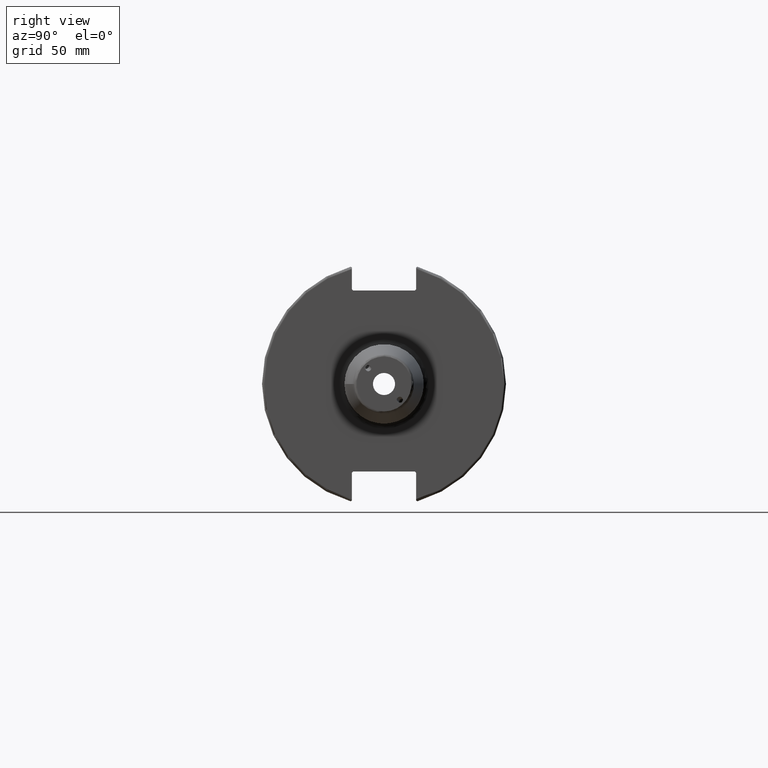
[diagram: clean part render]
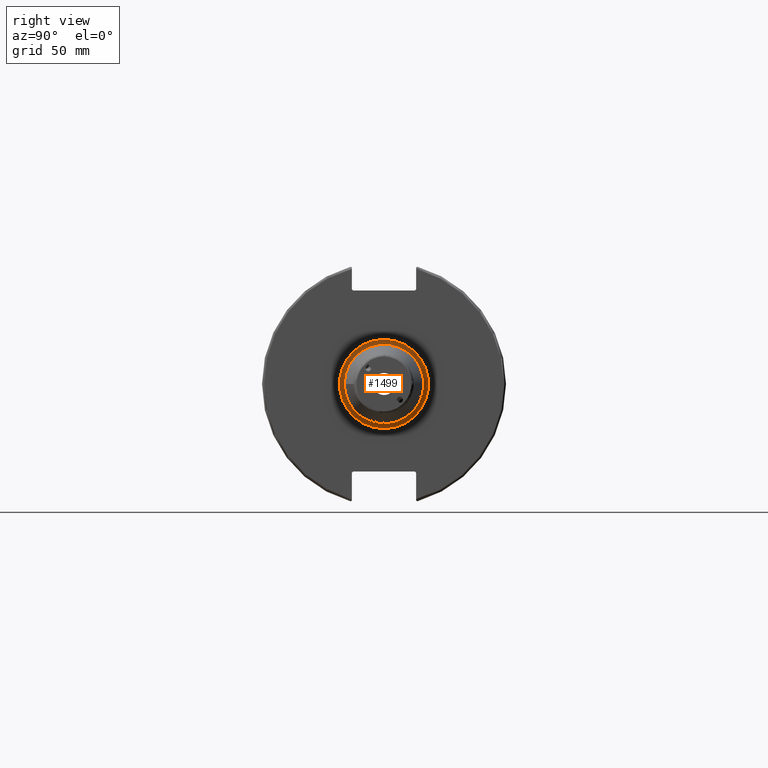
[diagram: same view with one face highlighted and labeled with its STEP entity id]
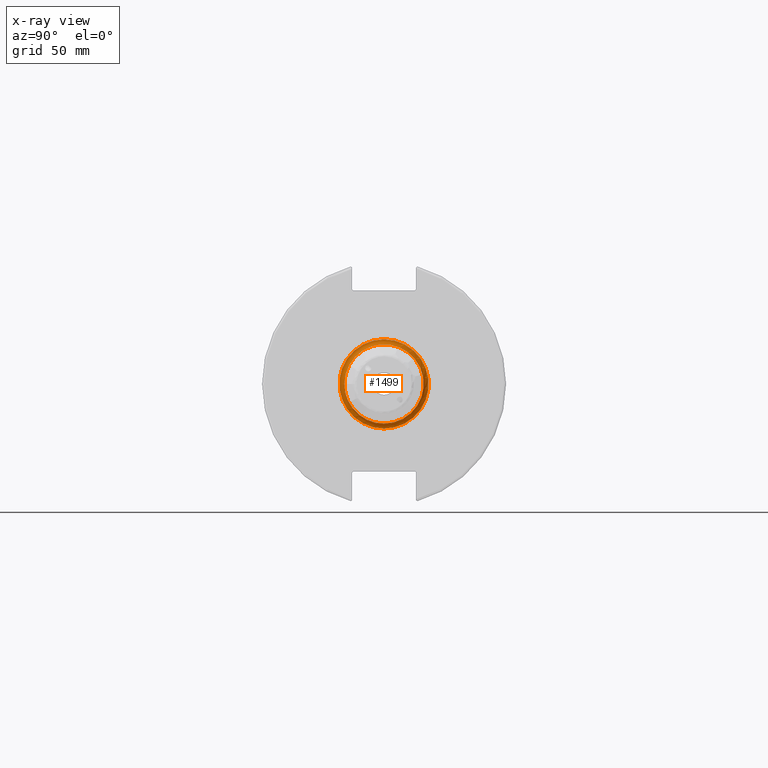
[diagram: x-ray of the same camera — body ghosted, the highlighted face saturated]
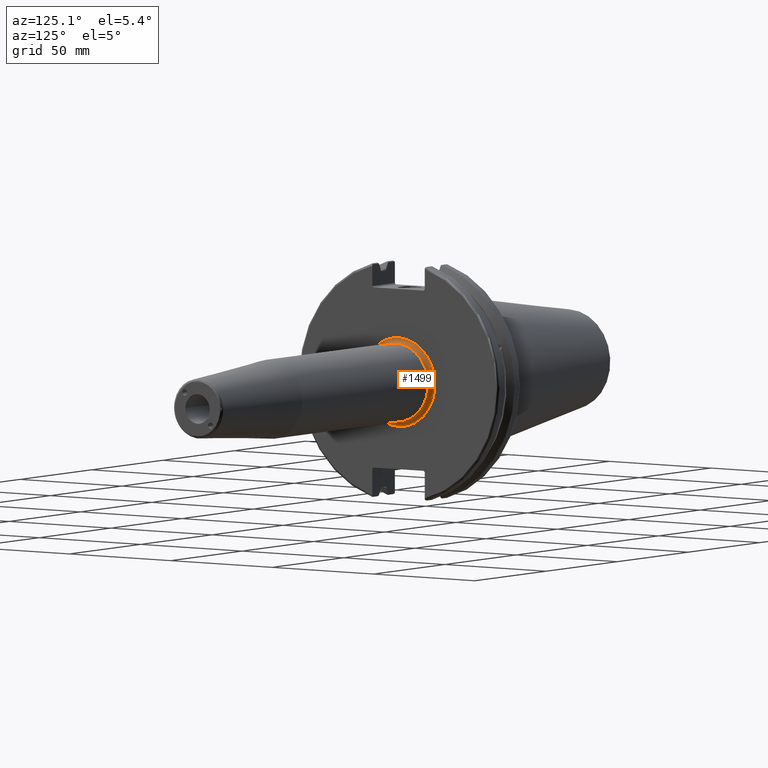
[diagram: same view with one face highlighted and labeled with its STEP entity id]
A machine part, right view. The second image highlights one B-rep face of the part: STEP entity #1499.
The next image is the same camera in x-ray: the body ghosted, the highlighted face saturated — about 2% of this face is hidden behind the body in this view.
A second angle (auxiliary view) of the same face is appended — the face is thin or edge-on in the first view.
In plain terms, the highlighted toroidal blend (fillet) surface has major radius 18 mm and minor (blend) radius 2 mm.
Its self-contained STEP definition (entity closure, byte-faithful):
#129=TOROIDAL_SURFACE('',#1621,18.,2.);
#176=FACE_OUTER_BOUND('',#268,.T.);
#268=EDGE_LOOP('',(#1047,#1048,#1049,#1050,#1051));
#569=CIRCLE('',#1622,16.);
#570=CIRCLE('',#1623,2.);
#571=CIRCLE('',#1624,18.);
#572=CIRCLE('',#1625,16.);
#647=VERTEX_POINT('',#2241);
#648=VERTEX_POINT('',#2242);
#649=VERTEX_POINT('',#2244);
#805=EDGE_CURVE('',#647,#648,#569,.T.);
#806=EDGE_CURVE('',#648,#649,#570,.T.);
#807=EDGE_CURVE('',#649,#649,#571,.T.);
#808=EDGE_CURVE('',#648,#647,#572,.T.);
#1047=ORIENTED_EDGE('',*,*,#805,.T.);
#1048=ORIENTED_EDGE('',*,*,#806,.T.);
#1049=ORIENTED_EDGE('',*,*,#807,.T.);
#1050=ORIENTED_EDGE('',*,*,#806,.F.);
#1051=ORIENTED_EDGE('',*,*,#808,.T.);
#1499=ADVANCED_FACE('',(#176),#129,.F.);
#1621=AXIS2_PLACEMENT_3D('',#2240,#1813,#1814);
#1622=AXIS2_PLACEMENT_3D('',#2243,#1815,#1816);
#1623=AXIS2_PLACEMENT_3D('',#2245,#1817,#1818);
#1624=AXIS2_PLACEMENT_3D('',#2246,#1819,#1820);
#1625=AXIS2_PLACEMENT_3D('',#2247,#1821,#1822);
#1813=DIRECTION('center_axis',(-1.,0.,0.));
#1814=DIRECTION('ref_axis',(0.,0.,1.));
#1815=DIRECTION('center_axis',(-1.,0.,0.));
#1816=DIRECTION('ref_axis',(0.,-1.,-1.22464679914735E-16));
#1817=DIRECTION('center_axis',(0.,-1.,1.22464679914735E-16));
#1818=DIRECTION('ref_axis',(0.,-1.22464679914735E-16,-1.));
#1819=DIRECTION('center_axis',(1.,0.,0.));
#1820=DIRECTION('ref_axis',(0.,-1.,-1.22464679914735E-16));
#1821=DIRECTION('center_axis',(-1.,0.,0.));
#1822=DIRECTION('ref_axis',(0.,-1.,-1.22464679914735E-16));
#2240=CARTESIAN_POINT('Origin',(21.05,0.,0.));
#2241=CARTESIAN_POINT('',(21.05,-16.,-1.95943487863577E-15));
#2242=CARTESIAN_POINT('',(21.05,-1.95943487863577E-15,-16.));
#2243=CARTESIAN_POINT('Origin',(21.05,0.,0.));
#2244=CARTESIAN_POINT('',(19.05,-2.20436423846524E-15,-18.));
#2245=CARTESIAN_POINT('Origin',(21.05,-2.20436423846524E-15,-18.));
#2246=CARTESIAN_POINT('Origin',(19.05,0.,0.));
#2247=CARTESIAN_POINT('Origin',(21.05,0.,0.));